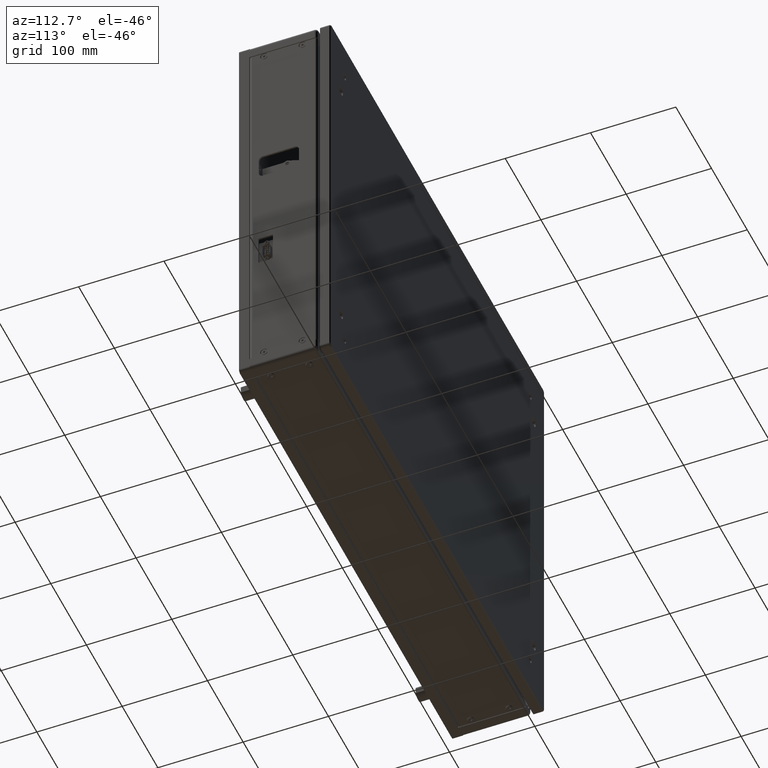
[diagram: clean part render]
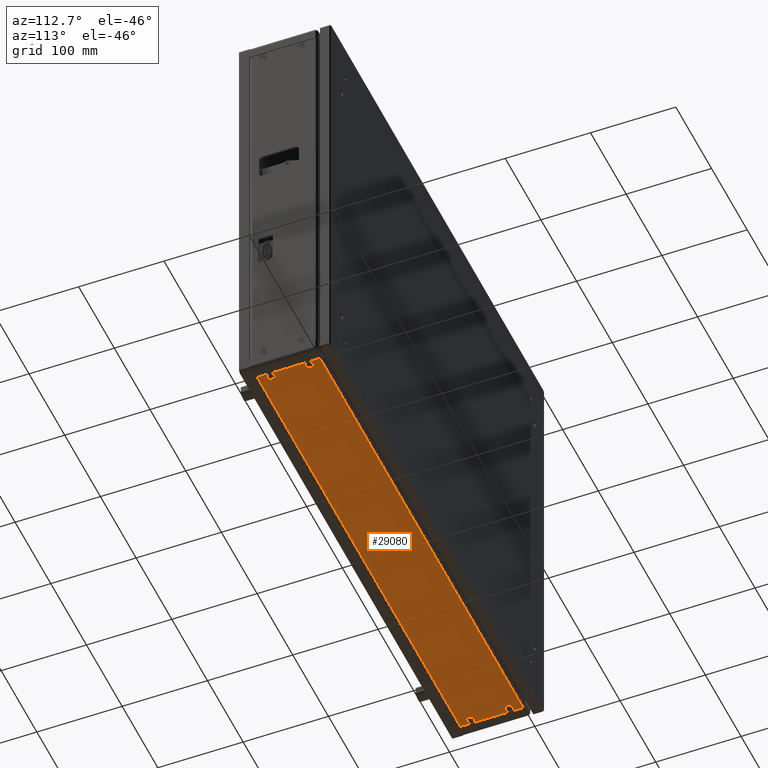
[diagram: same view with one face highlighted and labeled with its STEP entity id]
A machine part, auxiliary view. The second image highlights one B-rep face of the part: STEP entity #29080.
In plain terms, the highlighted planar face has unit normal (-0, -0, -1).
Its self-contained STEP definition (entity closure, byte-faithful):
#146 = EDGE_CURVE ( 'NONE', #37482, #37482, #38573, .T. ) ;
#1229 = CARTESIAN_POINT ( 'NONE',  ( -280.0287244020214530, 35.38718110048589693, 295.5000000000068212 ) ) ;
#2459 = VERTEX_POINT ( 'NONE', #8319 ) ;
#2651 = ORIENTED_EDGE ( 'NONE', *, *, #25920, .F. ) ;
#2887 = CARTESIAN_POINT ( 'NONE',  ( 288.9512755979890244, 21.13718110048565180, 295.5000000000067075 ) ) ;
#2909 = AXIS2_PLACEMENT_3D ( 'NONE', #24986, #22203, #9549 ) ;
#2999 = VECTOR ( 'NONE', #20380, 1000.000000000000000 ) ;
#3607 = CARTESIAN_POINT ( 'NONE',  ( -280.0287244020214530, 80.38718110048581877, 295.5000000000068212 ) ) ;
#3867 = VERTEX_POINT ( 'NONE', #2887 ) ;
#4202 = DIRECTION ( 'NONE',  ( 2.289834988289384872E-16, 1.243916869505303283E-16, 1.000000000000000000 ) ) ;
#4374 = CARTESIAN_POINT ( 'NONE',  ( 288.9512755979890244, 97.63718110048564824, 295.5000000000067075 ) ) ;
#5968 = DIRECTION ( 'NONE',  ( 1.000000000000000000, 1.224646799147362082E-16, -2.289834988289384872E-16 ) ) ;
#6594 = VECTOR ( 'NONE', #18865, 1000.000000000000000 ) ;
#6658 = ORIENTED_EDGE ( 'NONE', *, *, #146, .T. ) ;
#7370 = CARTESIAN_POINT ( 'NONE',  ( 288.9512755979890244, 94.63718110048564824, 295.5000000000067075 ) ) ;
#8308 = LINE ( 'NONE', #32443, #2999 ) ;
#8319 = CARTESIAN_POINT ( 'NONE',  ( -280.0487244020110893, 94.63718110048557719, 295.5000000000068212 ) ) ;
#8434 = VERTEX_POINT ( 'NONE', #20508 ) ;
#9407 = CARTESIAN_POINT ( 'NONE',  ( 288.9512755979890244, 21.13718110048565180, 295.5000000000067075 ) ) ;
#9549 = DIRECTION ( 'NONE',  ( -1.000000000000000000, 0.000000000000000000, 0.000000000000000000 ) ) ;
#9659 = CARTESIAN_POINT ( 'NONE',  ( -280.0487244020110893, 21.13718110048558430, 295.5000000000068781 ) ) ;
#9826 = EDGE_LOOP ( 'NONE', ( #22891 ) ) ;
#10731 = VERTEX_POINT ( 'NONE', #1229 ) ;
#10743 = DIRECTION ( 'NONE',  ( -1.000000000000000000, -1.224646799147362082E-16, 2.289834988289384872E-16 ) ) ;
#11041 = AXIS2_PLACEMENT_3D ( 'NONE', #31725, #34702, #10743 ) ;
#11103 = CARTESIAN_POINT ( 'NONE',  ( -275.5487244020109756, 80.38718110048581877, 295.5000000000068212 ) ) ;
#11516 = FACE_OUTER_BOUND ( 'NONE', #14997, .T. ) ;
#12253 = CIRCLE ( 'NONE', #34372, 4.479999999951411738 ) ;
#12435 = EDGE_CURVE ( 'NONE', #2459, #19056, #8308, .T. ) ;
#13234 = AXIS2_PLACEMENT_3D ( 'NONE', #11103, #26159, #23771 ) ;
#13742 = FACE_BOUND ( 'NONE', #21955, .T. ) ;
#14324 = VECTOR ( 'NONE', #5968, 1000.000000000000000 ) ;
#14997 = EDGE_LOOP ( 'NONE', ( #28890, #28796, #2651, #23457 ) ) ;
#15163 = AXIS2_PLACEMENT_3D ( 'NONE', #34545, #16343, #25647 ) ;
#16103 = DIRECTION ( 'NONE',  ( -1.000000000000000000, 0.000000000000000000, 0.000000000000000000 ) ) ;
#16343 = DIRECTION ( 'NONE',  ( 2.289834988289384872E-16, 1.243916869505303283E-16, 1.000000000000000000 ) ) ;
#17142 = VECTOR ( 'NONE', #33728, 1000.000000000000000 ) ;
#17275 = FACE_BOUND ( 'NONE', #35115, .T. ) ;
#18509 = ORIENTED_EDGE ( 'NONE', *, *, #28942, .T. ) ;
#18687 = CARTESIAN_POINT ( 'NONE',  ( 284.4512755979890812, 80.38718110048571930, 295.4999999999498641 ) ) ;
#18756 = CIRCLE ( 'NONE', #2909, 4.480000000010475603 ) ;
#18865 = DIRECTION ( 'NONE',  ( -8.874685183736382811E-31, 1.000000000000000000, -1.243916869505303283E-16 ) ) ;
#19056 = VERTEX_POINT ( 'NONE', #9659 ) ;
#19444 = LINE ( 'NONE', #4374, #6594 ) ;
#20380 = DIRECTION ( 'NONE',  ( 1.224646799147362328E-16, -1.000000000000000000, 1.243916869505303036E-16 ) ) ;
#20508 = CARTESIAN_POINT ( 'NONE',  ( 279.9712755980377210, 80.38718110048571930, 295.4999999999498641 ) ) ;
#21026 = CARTESIAN_POINT ( 'NONE',  ( 288.9512755979890244, 94.63718110048564824, 295.5000000000067075 ) ) ;
#21955 = EDGE_LOOP ( 'NONE', ( #6658 ) ) ;
#22203 = DIRECTION ( 'NONE',  ( 2.289834988289384872E-16, 1.243916869505303283E-16, 1.000000000000000000 ) ) ;
#22211 = VERTEX_POINT ( 'NONE', #3607 ) ;
#22690 = EDGE_CURVE ( 'NONE', #2459, #25867, #31438, .T. ) ;
#22891 = ORIENTED_EDGE ( 'NONE', *, *, #35011, .T. ) ;
#23457 = ORIENTED_EDGE ( 'NONE', *, *, #39181, .T. ) ;
#23771 = DIRECTION ( 'NONE',  ( -1.000000000000000000, 0.000000000000000000, 0.000000000000000000 ) ) ;
#24986 = CARTESIAN_POINT ( 'NONE',  ( -275.5487244020109756, 35.38718110048589693, 295.5000000000068212 ) ) ;
#25647 = DIRECTION ( 'NONE',  ( -1.000000000000000000, 0.000000000000000000, 0.000000000000000000 ) ) ;
#25867 = VERTEX_POINT ( 'NONE', #7370 ) ;
#25920 = EDGE_CURVE ( 'NONE', #3867, #25867, #19444, .T. ) ;
#26002 = FACE_BOUND ( 'NONE', #9826, .T. ) ;
#26159 = DIRECTION ( 'NONE',  ( 2.289834988289384872E-16, 1.243916869505303283E-16, 1.000000000000000000 ) ) ;
#28796 = ORIENTED_EDGE ( 'NONE', *, *, #22690, .T. ) ;
#28890 = ORIENTED_EDGE ( 'NONE', *, *, #12435, .F. ) ;
#28942 = EDGE_CURVE ( 'NONE', #8434, #8434, #12253, .T. ) ;
#29080 = ADVANCED_FACE ( 'NONE', ( #11516, #35475, #26002, #13742, #17275 ), #35089, .T. ) ;
#30565 = LINE ( 'NONE', #9407, #17142 ) ;
#31438 = LINE ( 'NONE', #21026, #14324 ) ;
#31725 = CARTESIAN_POINT ( 'NONE',  ( 288.9512755979890244, 97.63718110048564824, 295.5000000000067075 ) ) ;
#32191 = CIRCLE ( 'NONE', #13234, 4.480000000010475603 ) ;
#32443 = CARTESIAN_POINT ( 'NONE',  ( -280.0487244020110893, 97.63718110048557719, 295.5000000000068212 ) ) ;
#33141 = EDGE_LOOP ( 'NONE', ( #34568 ) ) ;
#33728 = DIRECTION ( 'NONE',  ( -1.000000000000000000, -1.224646799147362082E-16, 2.289834988289384872E-16 ) ) ;
#34372 = AXIS2_PLACEMENT_3D ( 'NONE', #18687, #4202, #16103 ) ;
#34545 = CARTESIAN_POINT ( 'NONE',  ( 284.4512755979890244, 35.38718110048571219, 295.5000000000067075 ) ) ;
#34568 = ORIENTED_EDGE ( 'NONE', *, *, #36498, .T. ) ;
#34702 = DIRECTION ( 'NONE',  ( -2.289834988289384872E-16, -1.243916869505303283E-16, -1.000000000000000000 ) ) ;
#35011 = EDGE_CURVE ( 'NONE', #22211, #22211, #32191, .T. ) ;
#35089 = PLANE ( 'NONE',  #11041 ) ;
#35115 = EDGE_LOOP ( 'NONE', ( #18509 ) ) ;
#35475 = FACE_BOUND ( 'NONE', #33141, .T. ) ;
#36498 = EDGE_CURVE ( 'NONE', #10731, #10731, #18756, .T. ) ;
#37482 = VERTEX_POINT ( 'NONE', #37687 ) ;
#37687 = CARTESIAN_POINT ( 'NONE',  ( 279.9712755979808207, 35.38718110048571219, 295.5000000000067075 ) ) ;
#38573 = CIRCLE ( 'NONE', #15163, 4.480000000008255157 ) ;
#39181 = EDGE_CURVE ( 'NONE', #3867, #19056, #30565, .T. ) ;